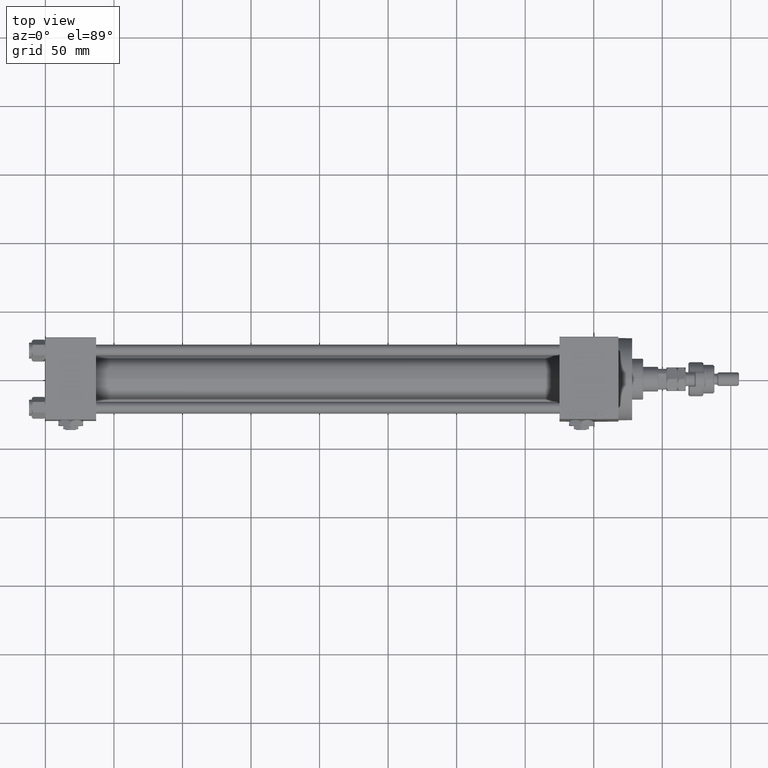
[diagram: clean part render]
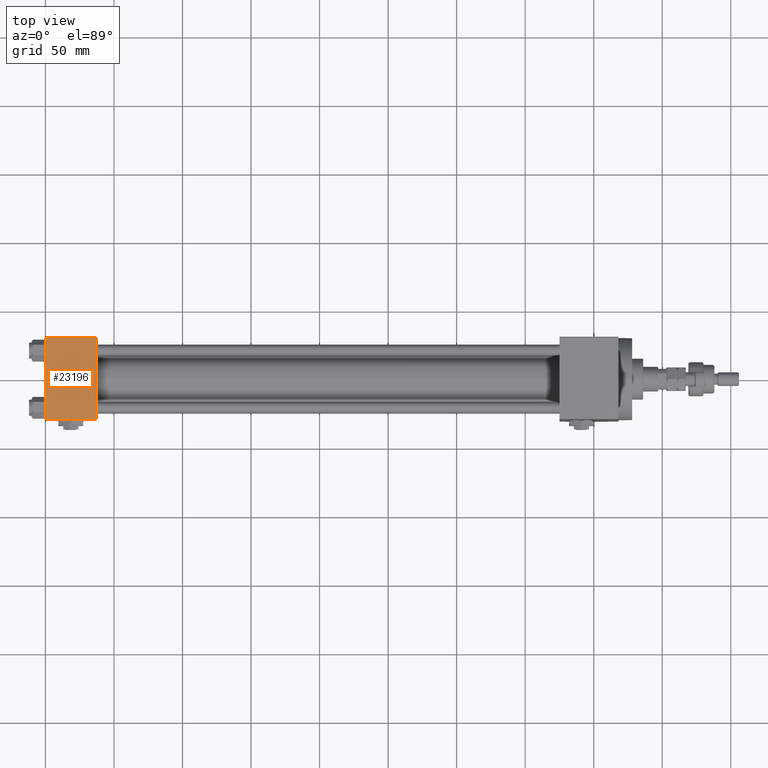
[diagram: same view with one face highlighted and labeled with its STEP entity id]
A machine part, top view. The second image highlights one B-rep face of the part: STEP entity #23196.
In plain terms, the highlighted planar face has unit normal (0, 0, -1).
Its self-contained STEP definition (entity closure, byte-faithful):
#2118 = CARTESIAN_POINT ( 'NONE',  ( 0.000000000000000000, -29.49999999999998579, 29.99999999999999289 ) ) ;
#4395 = AXIS2_PLACEMENT_3D ( 'NONE', #51519, #47841, #23358 ) ;
#7268 = PLANE ( 'NONE',  #4395 ) ;
#8623 = LINE ( 'NONE', #36541, #44102 ) ;
#9018 = EDGE_CURVE ( 'NONE', #18975, #35327, #43080, .T. ) ;
#13553 = VECTOR ( 'NONE', #29712, 1000.000000000000000 ) ;
#15287 = LINE ( 'NONE', #38982, #45207 ) ;
#15479 = ORIENTED_EDGE ( 'NONE', *, *, #19644, .T. ) ;
#15705 = FACE_OUTER_BOUND ( 'NONE', #40135, .T. ) ;
#18613 = CARTESIAN_POINT ( 'NONE',  ( 0.000000000000000000, 29.99999999999999289, 30.00000000000000000 ) ) ;
#18975 = VERTEX_POINT ( 'NONE', #28924 ) ;
#19644 = EDGE_CURVE ( 'NONE', #32147, #18975, #37615, .T. ) ;
#19760 = DIRECTION ( 'NONE',  ( 0.000000000000000000, -1.000000000000000000, -1.156482317317871725E-16 ) ) ;
#23196 = ADVANCED_FACE ( 'NONE', ( #15705 ), #7268, .F. ) ;
#23358 = DIRECTION ( 'NONE',  ( 0.000000000000000000, 1.000000000000000000, 1.156482317317871725E-16 ) ) ;
#24692 = DIRECTION ( 'NONE',  ( 1.000000000000000000, 0.000000000000000000, 0.000000000000000000 ) ) ;
#25153 = ORIENTED_EDGE ( 'NONE', *, *, #9018, .T. ) ;
#26314 = EDGE_CURVE ( 'NONE', #35327, #37534, #8623, .T. ) ;
#28924 = CARTESIAN_POINT ( 'NONE',  ( 0.000000000000000000, 29.49999999999999289, 30.00000000000000000 ) ) ;
#28983 = VECTOR ( 'NONE', #35214, 1000.000000000000000 ) ;
#29712 = DIRECTION ( 'NONE',  ( -1.000000000000000000, 0.000000000000000000, 0.000000000000000000 ) ) ;
#30028 = CARTESIAN_POINT ( 'NONE',  ( 37.00000000000000000, -29.49999999999998579, 29.99999999999999289 ) ) ;
#32147 = VERTEX_POINT ( 'NONE', #41257 ) ;
#32708 = CARTESIAN_POINT ( 'NONE',  ( 0.000000000000000000, 29.49999999999999289, 30.00000000000000000 ) ) ;
#33131 = ORIENTED_EDGE ( 'NONE', *, *, #26314, .T. ) ;
#35214 = DIRECTION ( 'NONE',  ( 0.000000000000000000, -1.000000000000000000, -1.156482317317871725E-16 ) ) ;
#35327 = VERTEX_POINT ( 'NONE', #2118 ) ;
#36541 = CARTESIAN_POINT ( 'NONE',  ( 37.00000000000000000, -29.50000000000000000, 29.99999999999999289 ) ) ;
#37534 = VERTEX_POINT ( 'NONE', #30028 ) ;
#37615 = LINE ( 'NONE', #32708, #13553 ) ;
#38982 = CARTESIAN_POINT ( 'NONE',  ( 37.00000000000000000, 29.99999999999999289, 30.00000000000000000 ) ) ;
#40135 = EDGE_LOOP ( 'NONE', ( #25153, #33131, #52135, #15479 ) ) ;
#41257 = CARTESIAN_POINT ( 'NONE',  ( 37.00000000000000000, 29.49999999999999289, 30.00000000000000000 ) ) ;
#43080 = LINE ( 'NONE', #18613, #28983 ) ;
#44102 = VECTOR ( 'NONE', #24692, 1000.000000000000000 ) ;
#45207 = VECTOR ( 'NONE', #19760, 1000.000000000000000 ) ;
#47841 = DIRECTION ( 'NONE',  ( 0.000000000000000000, 1.156482317317871725E-16, -1.000000000000000000 ) ) ;
#51519 = CARTESIAN_POINT ( 'NONE',  ( 37.00000000000000000, 29.99999999999999289, 30.00000000000000000 ) ) ;
#51843 = EDGE_CURVE ( 'NONE', #32147, #37534, #15287, .T. ) ;
#52135 = ORIENTED_EDGE ( 'NONE', *, *, #51843, .F. ) ;